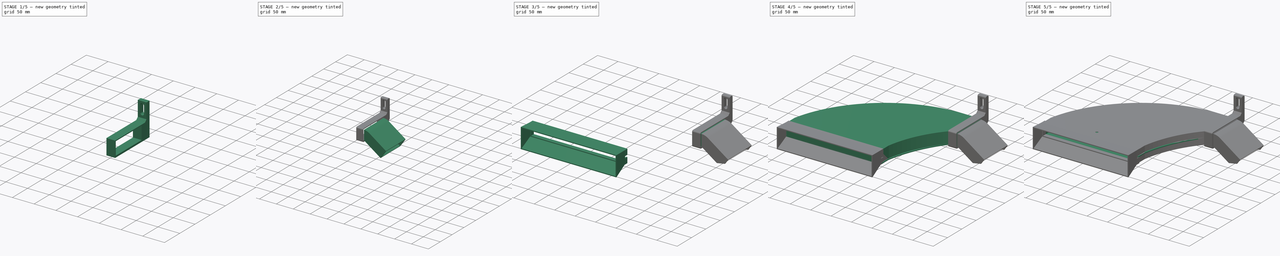
[diagram: build sequence overview — one tinted view per stage of 5, left to right]
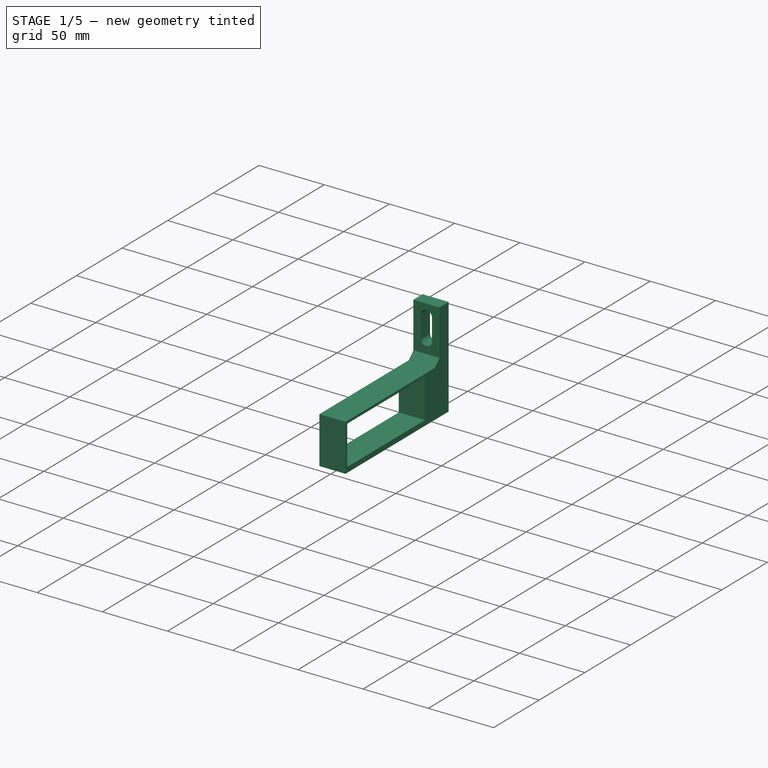
[diagram: stage 1 of 5 — iso view after this stage's code; geometry added in this stage tinted green]
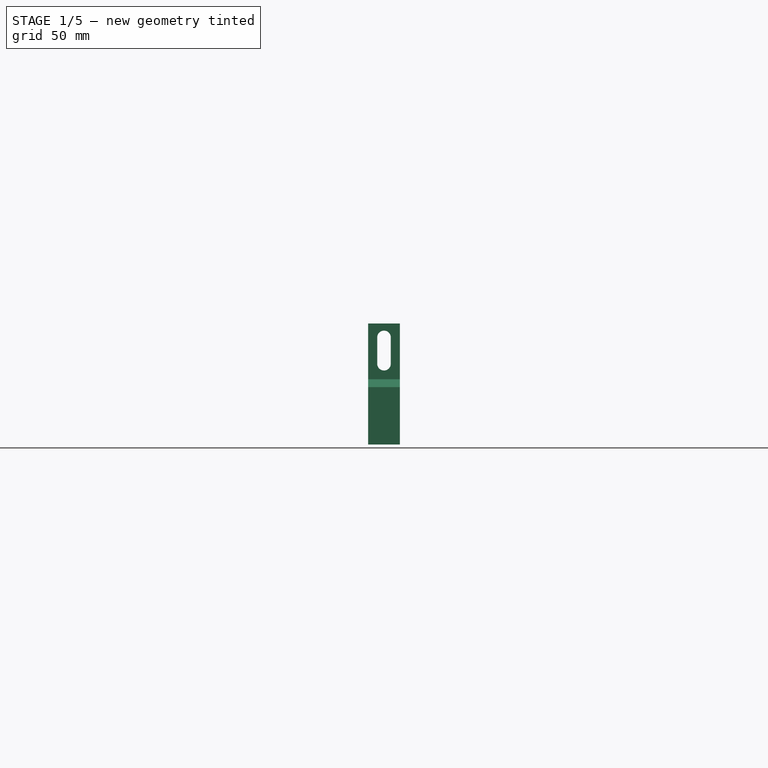
[diagram: stage 1 of 5 — front view after this stage's code; geometry added in this stage tinted green]
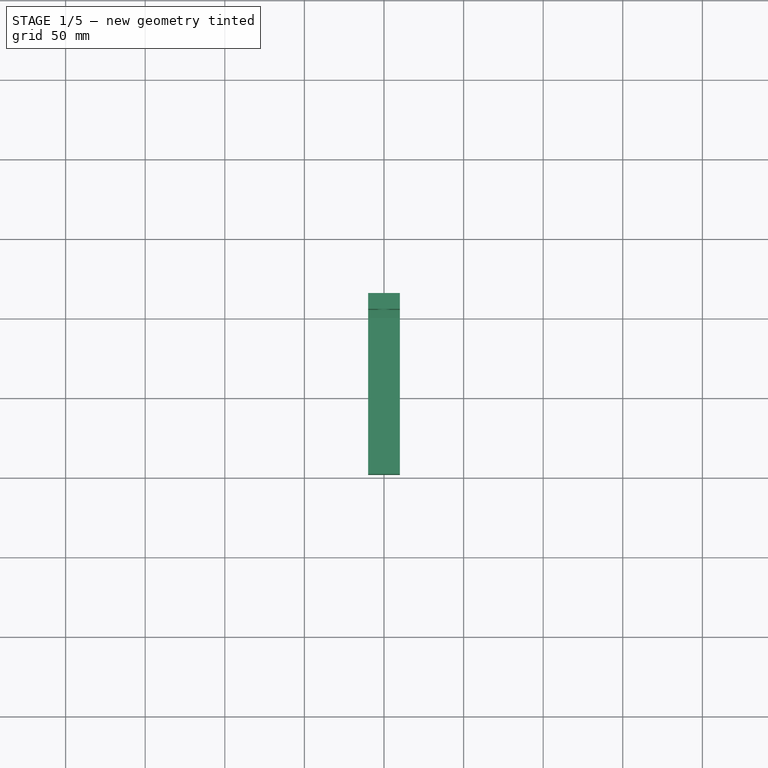
[diagram: stage 1 of 5 — top view after this stage's code; geometry added in this stage tinted green]
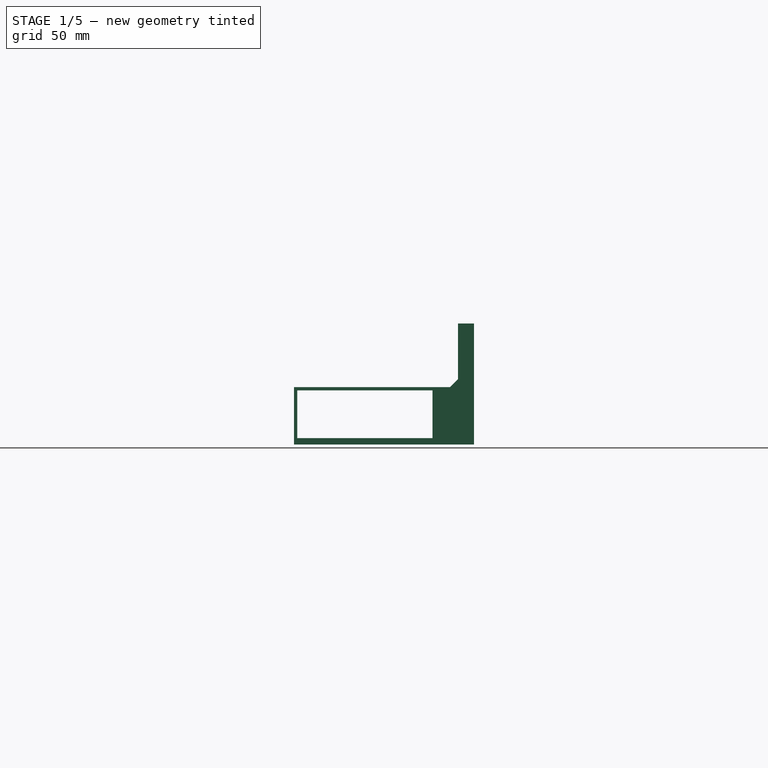
[diagram: stage 1 of 5 — right view after this stage's code; geometry added in this stage tinted green]
FCSTD DOCUMENT  (FreeCAD 1.0R38641 +468 (Git))
Label: GrYarisRearDiffDuctThinMainBody
License: All rights reserved
LicenseURL: https://en.wikipedia.org/wiki/All_rights_reserved
objects: Sketcher::SketchObject×19, PartDesign::Pad×9, PartDesign::Body×6, PartDesign::Pocket×6, PartDesign::Chamfer×2, PartDesign::Hole×1, Part::MultiFuse×1, Part::Cut×1, PartDesign::AdditiveLoft×1, PartDesign::Revolution×1, PartDesign::Fillet×1
note: 109 computed .brp shape members not serialized (recipe doc carries the construction recipe); baked Part::Feature solids carry a one-line shape summary decoded from their .brp

FEATURE [Sketcher::SketchObject] Sketch011
  ArcFitTolerance = 1e-06
  AttachmentOffset = pos=(290,0,-240) rot=(0,0,1;0rad)
  AttachmentSupport = -> [XZ_Plane004]
  FullyConstrained = true
  MakeInternals = false
  MapMode = 5
  Placement = pos=(290,240,-5.33e-14) rot=(1,0,0;1.5708rad)
  sketch-geometry (4):
    g0: LineSegment StartX=0 StartY=-3 StartZ=0 EndX=20 EndY=-3 EndZ=0
    g1: LineSegment StartX=20 StartY=-3 StartZ=0 EndX=20 EndY=33 EndZ=0
    g2: LineSegment StartX=20 StartY=33 StartZ=0 EndX=0 EndY=33 EndZ=0
    g3: LineSegment StartX=0 StartY=33 StartZ=0 EndX=0 EndY=-3 EndZ=0
  constraints (12):
    c: Coincident(g0,g1)
    c: Coincident(g1,g2)
    c: Coincident(g2,g3)
    c: Coincident(g3,g0)
    c: Horizontal(g0)
    c: Horizontal(g2)
    c: Vertical(g1)
    c: Vertical(g3)
    c: Distance(g1,g3) = 20
    c: Distance(g0,g2) = 36
    c: PointOnObject(g0,g-2)
    c: DistanceY(g0,g-1) = 3
FEATURE [PartDesign::Pad] Pad004  label="BaseSpacerPlate"
  Direction = (0,-1,2e-16)
  Length = 25
  Length2 = 10
  Placement = pos=(0,0,0) rot=(1,0,0;1.5708rad)
  Profile = -> Sketch011
  ReferenceAxis = -> Sketch011 [N_Axis]
  Refine = true
  Reversed = true
  Suppressed = false
  Type = 0
FEATURE [Sketcher::SketchObject] Sketch015  label="VerticalBase"
  ArcFitTolerance = 1e-06
  FullyConstrained = true
  MakeInternals = false
  MapMode = 5
  Placement = pos=(0,2.1e-14,33) rot=(0,0,1;3.14159rad)
  sketch-geometry (4):
    g0: LineSegment StartX=-310 StartY=-265 StartZ=0 EndX=-290 EndY=-265 EndZ=0
    g1: LineSegment StartX=-290 StartY=-265 StartZ=0 EndX=-290 EndY=-255 EndZ=0
    g2: LineSegment StartX=-290 StartY=-255 StartZ=0 EndX=-310 EndY=-255 EndZ=0
    g3: LineSegment StartX=-310 StartY=-255 StartZ=0 EndX=-310 EndY=-265 EndZ=0
  constraints (11):
    c: Coincident(g0,g1)
    c: Coincident(g1,g2)
    c: Coincident(g2,g3)
    c: Coincident(g3,g0)
    c: Horizontal(g0)
    c: Horizontal(g2)
    c: Vertical(g1)
    c: Vertical(g3)
    c: Coincident(g0,g-4)
    c: PointOnObject(g1,g-5)
    c: Distance(g1,g1) = 10
FEATURE [PartDesign::Pad] Pad008  label="VerticalBasePad"
  BaseFeature = -> Pad004
  Direction = (0,0,1)
  Length = 40
  Length2 = 10
  Placement = pos=(0,0,0) rot=(1,0,0;1.5708rad)
  Profile = -> Sketch015
  ReferenceAxis = -> Sketch015 [N_Axis]
  Refine = true
  Suppressed = false
  Type = 0
FEATURE [Sketcher::SketchObject] Sketch016  label="MountingHoleSketch001"
  ArcFitTolerance = 1e-06
  AttachmentSupport = -> [Pad008]
  ExternalGeometry = -> [Pad008]
  FullyConstrained = false
  MakeInternals = false
  MapMode = 5
  Placement = pos=(0,255,0) rot=(1,0,0;1.5708rad)
  sketch-geometry (11):
    g0: LineSegment StartX=299.942 StartY=43.5 StartZ=0 EndX=300.058 EndY=43.5 EndZ=0
    g1: LineSegment StartX=304.25 StartY=47.6919 StartZ=0 EndX=304.25 EndY=64.3081 EndZ=0
    g2: LineSegment StartX=300.058 StartY=68.5 StartZ=0 EndX=299.942 EndY=68.5 EndZ=0
    g3: LineSegment StartX=295.75 StartY=64.3081 StartZ=0 EndX=295.75 EndY=47.6919 EndZ=0
    g4: ArcOfCircle CenterX=299.942 CenterY=47.6919 CenterZ=0 NormalX=0 NormalY=0 NormalZ=1 AngleXU=0 Radius=4.19193 StartAngle=3.14159 EndAngle=4.71239
    g5: ArcOfCircle CenterX=300.058 CenterY=47.6919 CenterZ=0 NormalX=0 NormalY=0 NormalZ=1 AngleXU=0 Radius=4.19193 StartAngle=4.71239 EndAngle=6.28319
    g6: ArcOfCircle CenterX=300.058 CenterY=64.3081 CenterZ=0 NormalX=0 NormalY=0 NormalZ=1 AngleXU=0 Radius=4.19193 StartAngle=-4.441e-13 EndAngle=1.5708
    g7: ArcOfCircle CenterX=299.942 CenterY=64.3081 CenterZ=0 NormalX=0 NormalY=0 NormalZ=1 AngleXU=0 Radius=4.19193 StartAngle=1.5708 EndAngle=3.14159
    g8: GeomPoint [constr] X=304.25 Y=68.5 Z=0
    g9: GeomPoint [constr] X=300 Y=56 Z=0
    g10: GeomPoint [constr] X=300 Y=73 Z=0
  constraints (23):
    c: Tangent(g0,g4) = -1.5708
    c: Tangent(g0,g5) = -1.5708
    c: Tangent(g1,g5) = -1.5708
    c: Tangent(g1,g6) = -1.5708
    c: Tangent(g2,g6) = -1.5708
    c: Tangent(g2,g7) = -1.5708
    c: Tangent(g3,g7) = -1.5708
    c: Tangent(g3,g4) = -1.5708
    c: Horizontal(g0)
    c: Horizontal(g2)
    c: Vertical(g1)
    c: Vertical(g3)
    c: Equal(g4,g5)
    c: Equal(g5,g6)
    c: Equal(g6,g7)
    c: Symmetric(g2,g0,g9)
    c: PointOnObject(g8,g1)
    c: PointOnObject(g8,g2)
    c: Distance(g1,g3) = 8.5
    c: Distance(g0,g2) = 25
    c: Symmetric(g-4,g-4,g10)
    c: Vertical(g10,g9)
    c: DistanceY(g9,g-5) = 17
FEATURE [PartDesign::Pocket] Pocket004  label="MountingHolePocket"
  BaseFeature = -> Pad008
  Direction = (0,1,-2e-16)
  Length = 5
  Length2 = 5
  Placement = pos=(0,0,0) rot=(1,0,0;1.5708rad)
  Profile = -> Sketch016
  ReferenceAxis = -> Sketch016 [N_Axis]
  Refine = true
  Suppressed = false
  Type = 1
FEATURE [PartDesign::Body] Body005  label="Outlet"
  AllowCompound = false
  Group = -> [Sketch019,Revolution,Sketch020,Pad010,Sketch021,Pocket006,Sketch022,Pad011]
  Origin = -> Origin005
  Placement = pos=(0,395,30) rot=(1,0,0;3.14159rad)
  Tip = -> Pad011
FEATURE [Sketcher::SketchObject] Sketch023  label="WrapAroundMainBodySketch"
  ArcFitTolerance = 1e-06
  AttachmentSupport = -> [Pocket004]
  ExternalGeometry = -> [Pocket004]
  FullyConstrained = false
  MakeInternals = false
  MapMode = 5
  Placement = pos=(310,-1.755e-13,-2.143e-13) rot=(0.707107,0,0.707107;3.14159rad)
  sketch-geometry (9):
    g0: LineSegment StartX=-3 StartY=-240 StartZ=0 EndX=33 EndY=-240 EndZ=0
    g1: LineSegment StartX=33 StartY=-240 StartZ=0 EndX=33 EndY=-152 EndZ=0
    g2: LineSegment StartX=33 StartY=-152 StartZ=0 EndX=-3 EndY=-152 EndZ=0
    g3: LineSegment StartX=-3 StartY=-152 StartZ=0 EndX=-3 EndY=-240 EndZ=0
    g4: GeomPoint [constr] X=0 Y=-247.433 Z=0
    g5: LineSegment StartX=1 StartY=-239 StartZ=0 EndX=31 EndY=-239 EndZ=0
    g6: LineSegment StartX=31 StartY=-239 StartZ=0 EndX=31 EndY=-154 EndZ=0
    g7: LineSegment StartX=31 StartY=-154 StartZ=0 EndX=1 EndY=-154 EndZ=0
    g8: LineSegment StartX=1 StartY=-154 StartZ=0 EndX=1 EndY=-239 EndZ=0
  constraints (24):
    c: Coincident(g0,g1)
    c: Coincident(g1,g2)
    c: Coincident(g2,g3)
    c: Coincident(g3,g0)
    c: Horizontal(g0)
    c: Horizontal(g2)
    c: Vertical(g1)
    c: Vertical(g3)
    c: Coincident(g0,g-5)
    c: Vertical(g0,g-5)
    c: DistanceY(g3,g3) = 88
    c: PointOnObject(g4,g-2)
    c: Coincident(g5,g6)
    c: Coincident(g6,g7)
    c: Coincident(g7,g8)
    c: Coincident(g8,g5)
    c: Horizontal(g5)
    c: Horizontal(g7)
    c: Vertical(g6)
    c: Vertical(g8)
    c: DistanceX(g0,g5) = 4
    c: DistanceY(g0,g5) = 1
    c: Distance(g5,g5) = 30
    c: DistanceY(g6,g6) = 85
FEATURE [PartDesign::Pad] Pad012  label="WrapAroundMainBodyPad"
  BaseFeature = -> Pocket004
  Direction = (1,0,-2e-16)
  Length = 20
  Length2 = 10
  Placement = pos=(0,0,0) rot=(1,0,0;1.5708rad)
  Profile = -> Sketch023
  ReferenceAxis = -> Sketch023 [N_Axis]
  Refine = true
  Reversed = true
  Suppressed = false
  Type = 0
FEATURE [PartDesign::Chamfer] Chamfer  label="StrenghteningChamferInsideEdge"
  Angle = 45
  Base = -> Pad012 [Edge17]
  BaseFeature = -> Pad012
  ChamferType = 0
  FlipDirection = false
  Placement = pos=(0,0,0) rot=(1,0,0;1.5708rad)
  Refine = true
  Size = 5
  Size2 = 1
  SupportTransform = false
  Suppressed = false
  UseAllEdges = false
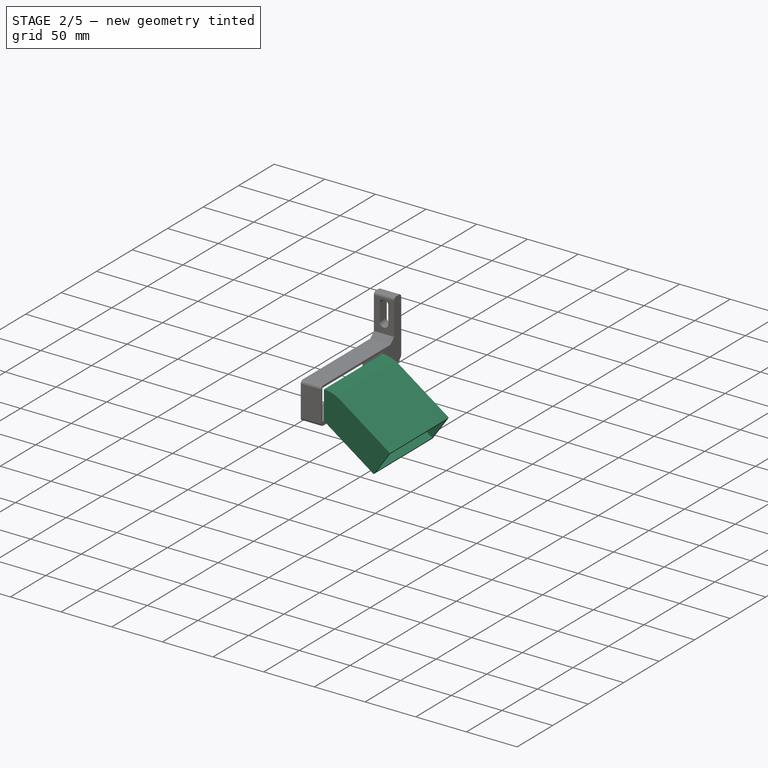
[diagram: stage 2 of 5 — iso view after this stage's code; geometry added in this stage tinted green]
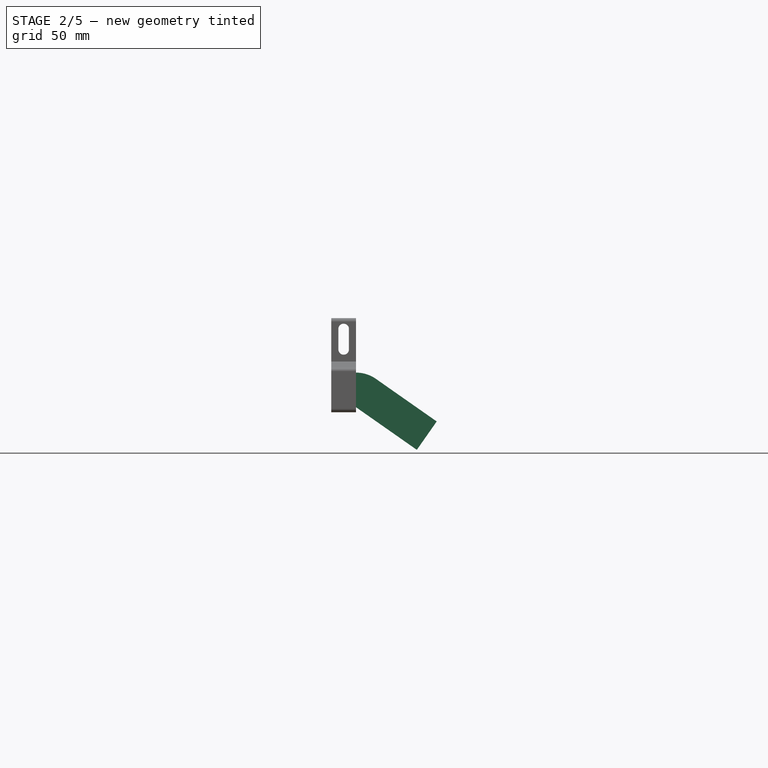
[diagram: stage 2 of 5 — front view after this stage's code; geometry added in this stage tinted green]
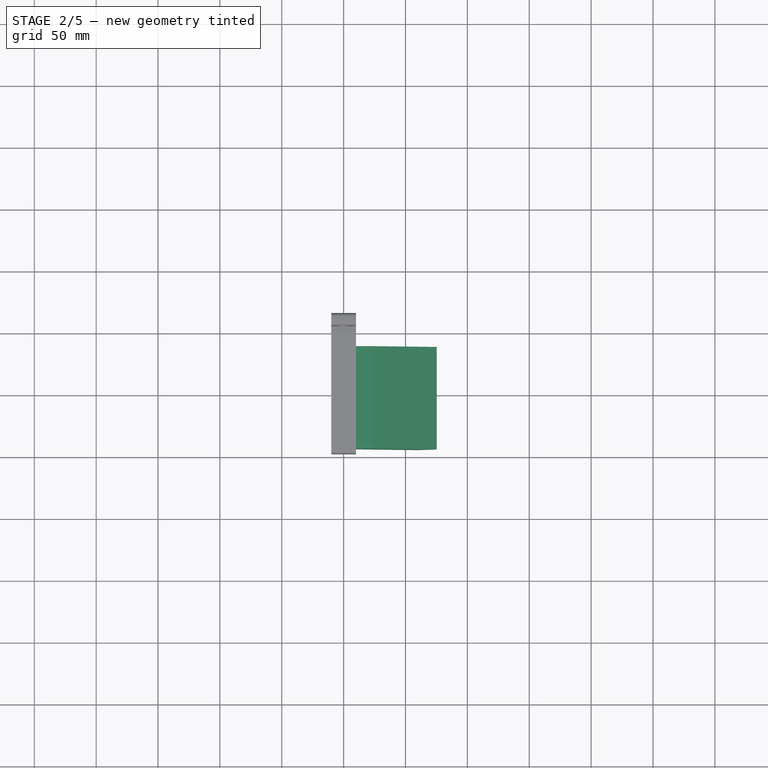
[diagram: stage 2 of 5 — top view after this stage's code; geometry added in this stage tinted green]
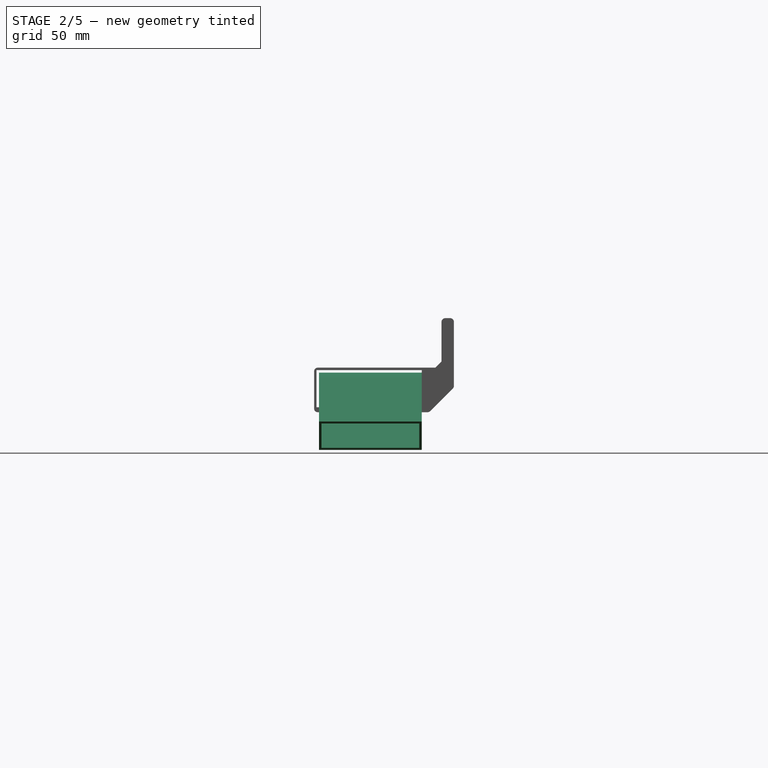
[diagram: stage 2 of 5 — right view after this stage's code; geometry added in this stage tinted green]
FEATURE [PartDesign::Body] Body003  label="Inlet"
  AllowCompound = false
  Group = -> [Sketch007,Pad003,Sketch008,Pocket003,Sketch009,Sketch010,AdditiveLoft,Sketch018,Pocket005]
  Origin = -> Origin003
  Tip = -> Pocket005
FEATURE [Sketcher::SketchObject] Sketch019  label="MainBodyMatchingSketch001"
  ArcFitTolerance = 1e-06
  AttachmentOffset = pos=(156,1,310) rot=(0,0,1;0rad)
  AttachmentSupport = -> [YZ_Plane005]
  FullyConstrained = true
  MakeInternals = false
  MapMode = 5
  Placement = pos=(310,156,1) rot=(0.57735,0.57735,0.57735;2.0944rad)
  sketch-geometry (8):
    g0: LineSegment StartX=0 StartY=0 StartZ=0 EndX=83 EndY=0 EndZ=0
    g1: LineSegment StartX=83 StartY=0 StartZ=0 EndX=83 EndY=28 EndZ=0
    g2: LineSegment StartX=83 StartY=28 StartZ=0 EndX=0 EndY=28 EndZ=0
    g3: LineSegment StartX=0 StartY=28 StartZ=0 EndX=0 EndY=0 EndZ=0
    g4: LineSegment StartX=2 StartY=26 StartZ=0 EndX=2 EndY=2 EndZ=0
    g5: LineSegment StartX=2 StartY=2 StartZ=0 EndX=81 EndY=2 EndZ=0
    g6: LineSegment StartX=81 StartY=2 StartZ=0 EndX=81 EndY=26 EndZ=0
    g7: LineSegment StartX=81 StartY=26 StartZ=0 EndX=2 EndY=26 EndZ=0
  constraints (23):
    c: Coincident(g0,g1)
    c: Coincident(g1,g2)
    c: Coincident(g2,g3)
    c: Coincident(g3,g0)
    c: Horizontal(g0)
    c: Horizontal(g2)
    c: Vertical(g1)
    c: Vertical(g3)
    c: Distance(g1,g3) = 83
    c: Distance(g0,g2) = 28
    c: Coincident(g0,g-1)
    c: Coincident(g4,g5)
    c: Coincident(g5,g6)
    c: Coincident(g6,g7)
    c: Coincident(g7,g4)
    c: Vertical(g4)
    c: Vertical(g6)
    c: Horizontal(g5)
    c: Horizontal(g7)
    c: DistanceX(g2,g4) = 2
    c: DistanceX(g6,g1) = 2
    c: DistanceY(g4,g2) = 2
    c: DistanceY(g0,g4) = 2
FEATURE [PartDesign::Revolution] Revolution  label="FirstBendUpwards"
  Angle = 35
  Angle2 = 60
  Axis = (0,1,0)
  Base = (310,156,1)
  Placement = pos=(0,0,0) rot=(1,1,1;2.0944rad)
  Profile = -> Sketch019
  ReferenceAxis = -> Sketch019 [H_Axis]
  Refine = true
  Suppressed = false
  Type = 0
FEATURE [Sketcher::SketchObject] Sketch020  label="Extension"
  ArcFitTolerance = 1e-06
  AttachmentSupport = -> [Revolution]
  ExternalGeometry = -> [Revolution]
  FullyConstrained = true
  MakeInternals = false
  MapMode = 5
  Placement = pos=(207.543,-8.87e-14,-145.323) rot=(0.663579,0.663579,0.345437;2.47638rad)
  sketch-geometry (8):
    g0: LineSegment StartX=156 StartY=206.628 StartZ=0 EndX=156 EndY=178.628 EndZ=0
    g1: LineSegment StartX=156 StartY=178.628 StartZ=0 EndX=239 EndY=178.628 EndZ=0
    g2: LineSegment StartX=239 StartY=178.628 StartZ=0 EndX=239 EndY=206.628 EndZ=0
    g3: LineSegment StartX=239 StartY=206.628 StartZ=0 EndX=156 EndY=206.628 EndZ=0
    g4: LineSegment StartX=237 StartY=204.628 StartZ=0 EndX=158 EndY=204.628 EndZ=0
    g5: LineSegment StartX=158 StartY=204.628 StartZ=0 EndX=158 EndY=180.628 EndZ=0
    g6: LineSegment StartX=158 StartY=180.628 StartZ=0 EndX=237 EndY=180.628 EndZ=0
    g7: LineSegment StartX=237 StartY=180.628 StartZ=0 EndX=237 EndY=204.628 EndZ=0
  constraints (20):
    c: Coincident(g0,g1)
    c: Coincident(g1,g2)
    c: Coincident(g2,g3)
    c: Coincident(g3,g0)
    c: Vertical(g0)
    c: Vertical(g2)
    c: Horizontal(g1)
    c: Horizontal(g3)
    c: Coincident(g0,g-4)
    c: Coincident(g1,g-5)
    c: Coincident(g4,g5)
    c: Coincident(g5,g6)
    c: Coincident(g6,g7)
    c: Coincident(g7,g4)
    c: Horizontal(g4)
    c: Horizontal(g6)
    c: Vertical(g5)
    c: Vertical(g7)
    c: Coincident(g4,g-7)
    c: Coincident(g5,g-6)
FEATURE [PartDesign::Pad] Pad010  label="MainOutletPipePad"
  BaseFeature = -> Revolution
  Direction = (0.819152,-1e-16,-0.573576)
  Length = 60
  Length2 = 10
  Placement = pos=(0,0,0) rot=(1,1,1;2.0944rad)
  Profile = -> Sketch020
  ReferenceAxis = -> Sketch020 [N_Axis]
  Refine = true
  Suppressed = false
  Type = 0
FEATURE [PartDesign::Chamfer] Chamfer001  label="CutoutOutisdeChamfer"
  Angle = 45
  Base = -> Chamfer [Edge52]
  BaseFeature = -> Chamfer
  ChamferType = 0
  FlipDirection = false
  Placement = pos=(0,0,0) rot=(1,0,0;1.5708rad)
  Refine = true
  Size = 20
  Size2 = 1
  SupportTransform = false
  Suppressed = false
  UseAllEdges = false
FEATURE [PartDesign::Fillet] Fillet  label="ExternalEdgesFillet"
  Base = -> Chamfer001 [Edge14,Edge26,Edge40,Edge29,Edge13,Edge24]
  BaseFeature = -> Chamfer001
  Placement = pos=(0,0,0) rot=(1,0,0;1.5708rad)
  Radius = 3
  Refine = true
  SupportTransform = false
  Suppressed = false
  UseAllEdges = false
FEATURE [PartDesign::Body] Body004  label="RearHanger"
  AllowCompound = false
  Group = -> [Sketch011,Pad004,Sketch015,Pad008,Sketch016,Pocket004,Sketch023,Pad012,Chamfer,Chamfer001,Fillet]
  Origin = -> Origin004
  Placement = pos=(0,1,-1) rot=(0,0,1;0rad)
  Tip = -> Fillet
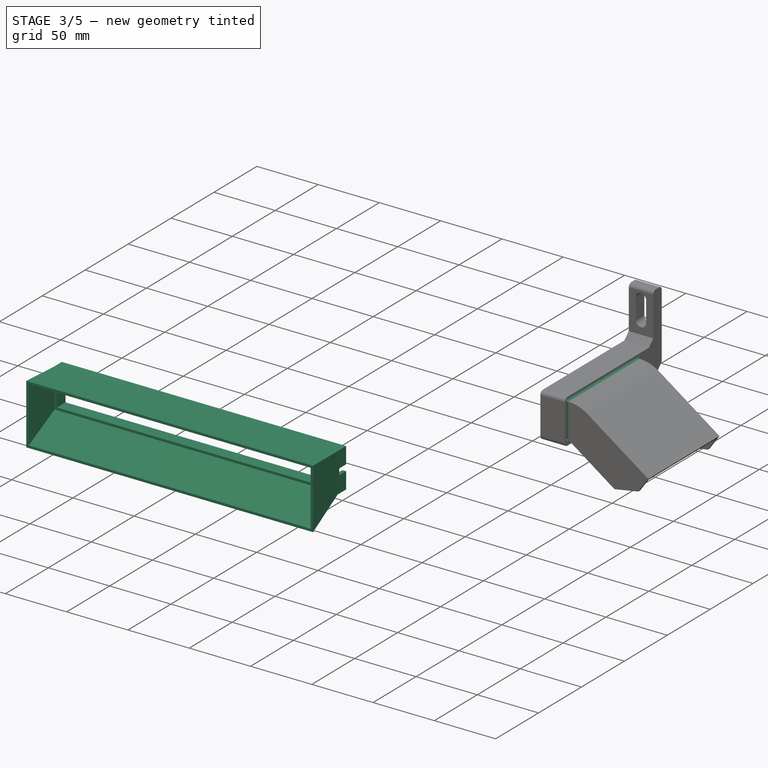
[diagram: stage 3 of 5 — iso view after this stage's code; geometry added in this stage tinted green]
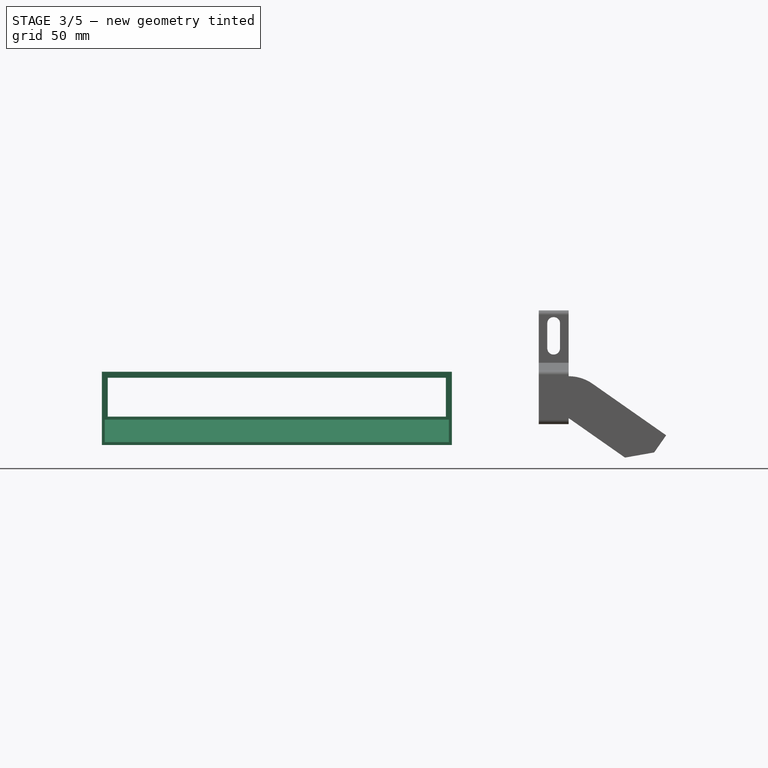
[diagram: stage 3 of 5 — front view after this stage's code; geometry added in this stage tinted green]
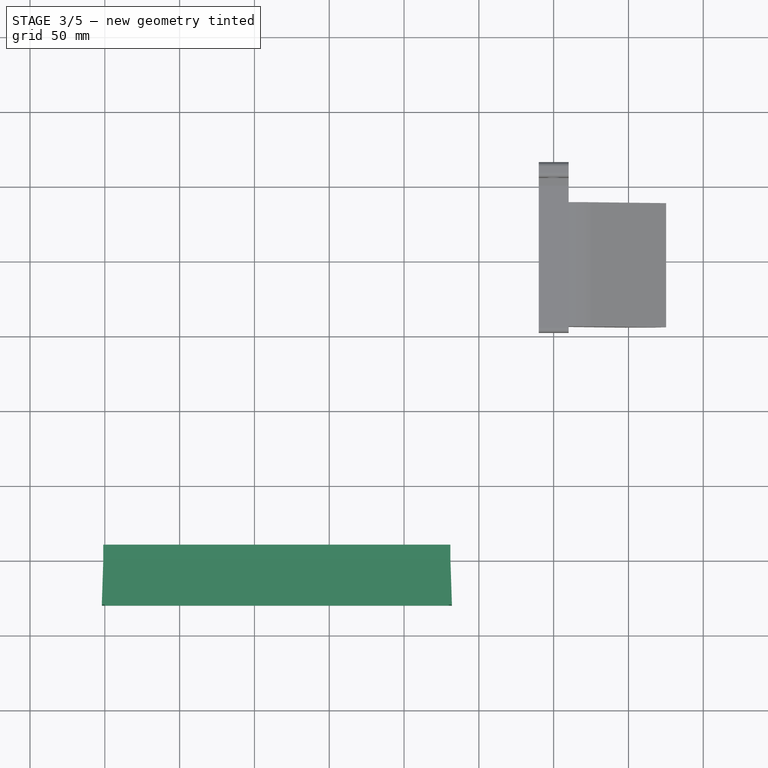
[diagram: stage 3 of 5 — top view after this stage's code; geometry added in this stage tinted green]
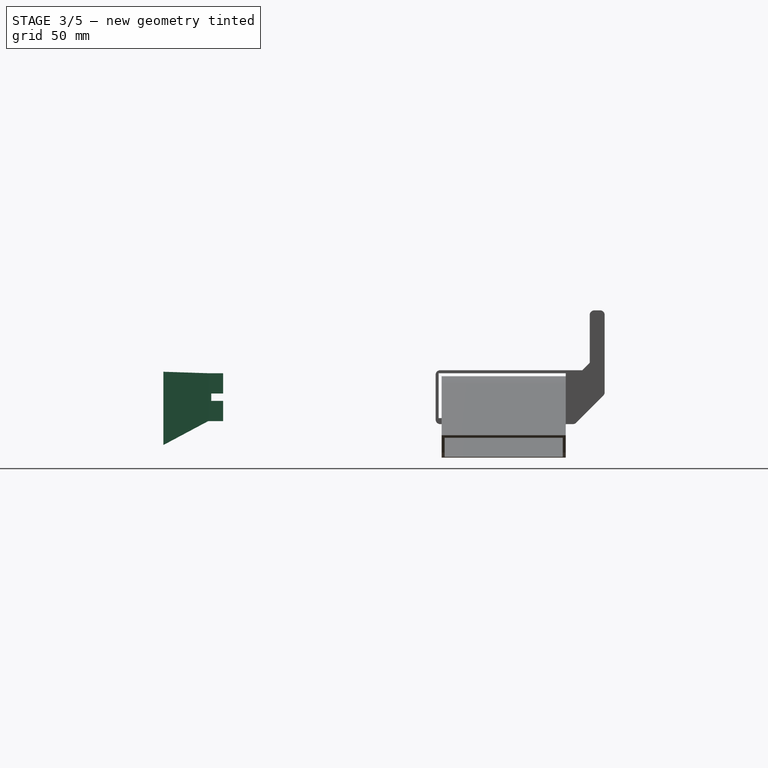
[diagram: stage 3 of 5 — right view after this stage's code; geometry added in this stage tinted green]
FEATURE [Sketcher::SketchObject] Sketch007  label="MainBodyMatchingSketch"
  ArcFitTolerance = 1e-06
  AttachmentSupport = -> [XZ_Plane003]
  FullyConstrained = true
  MakeInternals = false
  MapMode = 5
  Placement = pos=(0,0,0) rot=(1,0,0;1.5708rad)
  sketch-geometry (8):
    g0: LineSegment StartX=-1 StartY=31 StartZ=0 EndX=-1 EndY=-1 EndZ=0
    g1: LineSegment StartX=-1 StartY=-1 StartZ=0 EndX=231 EndY=-1 EndZ=0
    g2: LineSegment StartX=231 StartY=-1 StartZ=0 EndX=231 EndY=31 EndZ=0
    g3: LineSegment StartX=231 StartY=31 StartZ=0 EndX=-1 EndY=31 EndZ=0
    g4: LineSegment StartX=2 StartY=28 StartZ=0 EndX=2 EndY=2 EndZ=0
    g5: LineSegment StartX=2 StartY=2 StartZ=0 EndX=228 EndY=2 EndZ=0
    g6: LineSegment StartX=228 StartY=2 StartZ=0 EndX=228 EndY=28 EndZ=0
    g7: LineSegment StartX=228 StartY=28 StartZ=0 EndX=2 EndY=28 EndZ=0
  constraints (24):
    c: Coincident(g0,g1)
    c: Coincident(g1,g2)
    c: Coincident(g2,g3)
    c: Coincident(g3,g0)
    c: Vertical(g0)
    c: Vertical(g2)
    c: Horizontal(g1)
    c: Horizontal(g3)
    c: Coincident(g4,g5)
    c: Coincident(g5,g6)
    c: Coincident(g6,g7)
    c: Coincident(g7,g4)
    c: Vertical(g4)
    c: Vertical(g6)
    c: Horizontal(g5)
    c: Horizontal(g7)
    c: DistanceY(g0,g-1) = 1
    c: DistanceY(g0,g0) = 32
    c: DistanceX(g1,g1) = 232
    c: DistanceX(g0,g-1) = 1
    c: DistanceX(g0,g4) = 3
    c: DistanceX(g6,g2) = 3
    c: DistanceY(g0,g4) = 3
    c: DistanceY(g4,g0) = 3
FEATURE [PartDesign::Pad] Pad003  label="MainBodyMatchingPad"
  Direction = (0,-1,2e-16)
  Length = 10
  Length2 = 10
  Placement = pos=(0,0,0) rot=(1,0,0;1.5708rad)
  Profile = -> Sketch007
  ReferenceAxis = -> Sketch007 [N_Axis]
  Refine = true
  Reversed = true
  Suppressed = false
  Type = 0
FEATURE [Sketcher::SketchObject] Sketch008  label="CutoutForFlangeSketch"
  ArcFitTolerance = 1e-06
  AttachmentSupport = -> [Pad003]
  ExternalGeometry = -> [Pad003]
  FullyConstrained = true
  MakeInternals = false
  MapMode = 5
  Placement = pos=(-1,0,0) rot=(0.707107,0,-0.707107;3.14159rad)
  sketch-geometry (4):
    g0: LineSegment StartX=-17.5 StartY=-10 StartZ=0 EndX=-12.5 EndY=-10 EndZ=0
    g1: LineSegment StartX=-12.5 StartY=-10 StartZ=0 EndX=-12.5 EndY=-2 EndZ=0
    g2: LineSegment StartX=-12.5 StartY=-2 StartZ=0 EndX=-17.5 EndY=-2 EndZ=0
    g3: LineSegment StartX=-17.5 StartY=-2 StartZ=0 EndX=-17.5 EndY=-10 EndZ=0
  constraints (12):
    c: Coincident(g0,g1)
    c: Coincident(g1,g2)
    c: Coincident(g2,g3)
    c: Coincident(g3,g0)
    c: Horizontal(g0)
    c: Horizontal(g2)
    c: Vertical(g1)
    c: Vertical(g3)
    c: PointOnObject(g0,g-3)
    c: DistanceX(g-5,g2) = 13.5
    c: DistanceX(g1,g-4) = 13.5
    c: DistanceY(g0,g1) = 8
FEATURE [PartDesign::Pocket] Pocket003  label="CutoutForFlangePocket"
  BaseFeature = -> Pad003
  Direction = (1,0,2e-16)
  Length = 5
  Length2 = 5
  Placement = pos=(0,0,0) rot=(1,0,0;1.5708rad)
  Profile = -> Sketch008
  ReferenceAxis = -> Sketch008 [N_Axis]
  Refine = true
  Suppressed = false
  Type = 1
FEATURE [Sketcher::SketchObject] Sketch009  label="InletLargeHoleSketch"
  ArcFitTolerance = 1e-06
  AttachmentOffset = pos=(0,0,30) rot=(0,0,1;0rad)
  AttachmentSupport = -> [XZ_Plane003]
  FullyConstrained = true
  MakeInternals = false
  MapMode = 5
  Placement = pos=(0,-30,6.7e-15) rot=(1,0,0;1.5708rad)
  sketch-geometry (8):
    g0: LineSegment StartX=0 StartY=30 StartZ=0 EndX=0 EndY=-15 EndZ=0
    g1: LineSegment StartX=0 StartY=-15 StartZ=0 EndX=230 EndY=-15 EndZ=0
    g2: LineSegment StartX=230 StartY=-15 StartZ=0 EndX=230 EndY=30 EndZ=0
    g3: LineSegment StartX=230 StartY=30 StartZ=0 EndX=0 EndY=30 EndZ=0
    g4: LineSegment StartX=-2 StartY=32 StartZ=0 EndX=-2 EndY=-17 EndZ=0
    g5: LineSegment StartX=-2 StartY=-17 StartZ=0 EndX=232 EndY=-17 EndZ=0
    g6: LineSegment StartX=232 StartY=-17 StartZ=0 EndX=232 EndY=32 EndZ=0
    g7: LineSegment StartX=232 StartY=32 StartZ=0 EndX=-2 EndY=32 EndZ=0
  constraints (24):
    c: Coincident(g0,g1)
    c: Coincident(g1,g2)
    c: Coincident(g2,g3)
    c: Coincident(g3,g0)
    c: Vertical(g0)
    c: Vertical(g2)
    c: Horizontal(g1)
    c: Horizontal(g3)
    c: Distance(g0,g2) = 230
    c: Distance(g1,g3) = 45
    c: PointOnObject(g0,g-2)
    c: DistanceY(g-1,g0) = 30
    c: Coincident(g4,g5)
    c: Coincident(g5,g6)
    c: Coincident(g6,g7)
    c: Coincident(g7,g4)
    c: Vertical(g4)
    c: Vertical(g6)
    c: Horizontal(g5)
    c: Horizontal(g7)
    c: DistanceX(g2,g6) = 2
    c: DistanceX(g4,g0) = 2
    c: DistanceY(g4,g0) = 2
    c: DistanceY(g0,g4) = 2
FEATURE [Sketcher::SketchObject] Sketch010  label="InletFaceSketch"
  ArcFitTolerance = 1e-06
  AttachmentSupport = -> [Pocket003]
  ExternalGeometry = -> [Pocket003]
  FullyConstrained = true
  MakeInternals = false
  MapMode = 5
  Placement = pos=(0,3.3e-15,0) rot=(1,0,0;1.5708rad)
  sketch-geometry (8):
    g0: LineSegment StartX=0 StartY=30 StartZ=0 EndX=0 EndY=0 EndZ=0
    g1: LineSegment StartX=0 StartY=0 StartZ=0 EndX=230 EndY=0 EndZ=0
    g2: LineSegment StartX=230 StartY=0 StartZ=0 EndX=230 EndY=30 EndZ=0
    g3: LineSegment StartX=230 StartY=30 StartZ=0 EndX=0 EndY=30 EndZ=0
    g4: LineSegment StartX=-1 StartY=31 StartZ=0 EndX=-1 EndY=-1 EndZ=0
    g5: LineSegment StartX=-1 StartY=-1 StartZ=0 EndX=231 EndY=-1 EndZ=0
    g6: LineSegment StartX=231 StartY=-1 StartZ=0 EndX=231 EndY=31 EndZ=0
    g7: LineSegment StartX=231 StartY=31 StartZ=0 EndX=-1 EndY=31 EndZ=0
  constraints (20):
    c: Coincident(g0,g1)
    c: Coincident(g1,g2)
    c: Coincident(g2,g3)
    c: Coincident(g3,g0)
    c: Vertical(g0)
    c: Vertical(g2)
    c: Horizontal(g1)
    c: Horizontal(g3)
    c: Coincident(g0,g-4)
    c: Coincident(g1,g-7)
    c: Coincident(g4,g5)
    c: Coincident(g5,g6)
    c: Coincident(g6,g7)
    c: Coincident(g7,g4)
    c: Vertical(g4)
    c: Vertical(g6)
    c: Horizontal(g5)
    c: Horizontal(g7)
    c: Coincident(g4,g-5)
    c: Coincident(g5,g-8)
FEATURE [PartDesign::AdditiveLoft] AdditiveLoft
  BaseFeature = -> Pocket003
  Closed = false
  Placement = pos=(0,0,0) rot=(1,0,0;1.5708rad)
  Profile = -> Sketch009
  Refine = true
  Ruled = false
  Sections = -> [Sketch010]
  Suppressed = false
FEATURE [Sketcher::SketchObject] Sketch021  label="TipCutoutSketch"
  ArcFitTolerance = 1e-06
  AttachmentSupport = -> [Pad010]
  ExternalGeometry = -> [Pad010]
  FullyConstrained = true
  MakeInternals = false
  MapMode = 5
  Placement = pos=(1.747e-13,156,0) rot=(0.57735,0.57735,-0.57735;2.0944rad)
  sketch-geometry (3):
    g0: LineSegment StartX=21.9465 StartY=367.179 StartZ=0 EndX=33.4146 EndY=359.149 EndZ=0
    g1: LineSegment StartX=33.4146 StartY=359.149 StartZ=0 EndX=25.3845 EndY=347.681 EndZ=0
    g2: LineSegment StartX=21.9465 StartY=367.179 StartZ=0 EndX=25.3845 EndY=347.681 EndZ=0
  constraints (7):
    c: Symmetric(g-3,g-3,g0)
    c: Coincident(g0,g-4)
    c: Coincident(g1,g0)
    c: PointOnObject(g1,g-4)
    c: Equal(g1,g0)
    c: Coincident(g2,g0)
    c: Coincident(g2,g1)
FEATURE [PartDesign::Pocket] Pocket006  label="TipCutoutPocket"
  BaseFeature = -> Pad010
  Direction = (1e-15,1,-1e-16)
  Length = 5
  Length2 = 5
  Placement = pos=(0,0,0) rot=(1,1,1;2.0944rad)
  Profile = -> Sketch021
  ReferenceAxis = -> Sketch021 [N_Axis]
  Refine = true
  Suppressed = false
  Type = 1
FEATURE [Sketcher::SketchObject] Sketch022  label="InsertIntoMainBodySketch"
  ArcFitTolerance = 1e-06
  AttachmentSupport = -> [Pocket006]
  ExternalGeometry = -> [Pocket006]
  FullyConstrained = true
  MakeInternals = false
  MapMode = 5
  Placement = pos=(310,0,0) rot=(0.57735,0.57735,-0.57735;4.18879rad)
  sketch-geometry (8):
    g0: LineSegment StartX=158 StartY=-3 StartZ=0 EndX=158 EndY=-27 EndZ=0
    g1: LineSegment StartX=158 StartY=-27 StartZ=0 EndX=237 EndY=-27 EndZ=0
    g2: LineSegment StartX=237 StartY=-27 StartZ=0 EndX=237 EndY=-3 EndZ=0
    g3: LineSegment StartX=237 StartY=-3 StartZ=0 EndX=158 EndY=-3 EndZ=0
    g4: LineSegment StartX=156 StartY=-1 StartZ=0 EndX=156 EndY=-29 EndZ=0
    g5: LineSegment StartX=156 StartY=-29 StartZ=0 EndX=239 EndY=-29 EndZ=0
    g6: LineSegment StartX=239 StartY=-29 StartZ=0 EndX=239 EndY=-1 EndZ=0
    g7: LineSegment StartX=239 StartY=-1 StartZ=0 EndX=156 EndY=-1 EndZ=0
  constraints (20):
    c: Coincident(g0,g1)
    c: Coincident(g1,g2)
    c: Coincident(g2,g3)
    c: Coincident(g3,g0)
    c: Vertical(g0)
    c: Vertical(g2)
    c: Horizontal(g1)
    c: Horizontal(g3)
    c: Coincident(g0,g-7)
    c: Coincident(g1,g-10)
    c: Coincident(g4,g5)
    c: Coincident(g5,g6)
    c: Coincident(g6,g7)
    c: Coincident(g7,g4)
    c: Vertical(g4)
    c: Vertical(g6)
    c: Horizontal(g5)
    c: Horizontal(g7)
    c: Coincident(g4,g-8)
    c: Coincident(g5,g-9)
FEATURE [PartDesign::Pad] Pad011  label="InsertIntoMainBodyPad"
  BaseFeature = -> Pocket006
  Direction = (-1,0,0)
  Length = 15
  Length2 = 10
  Placement = pos=(0,0,0) rot=(1,1,1;2.0944rad)
  Profile = -> Sketch022
  ReferenceAxis = -> Sketch022 [N_Axis]
  Refine = true
  Suppressed = false
  Type = 0
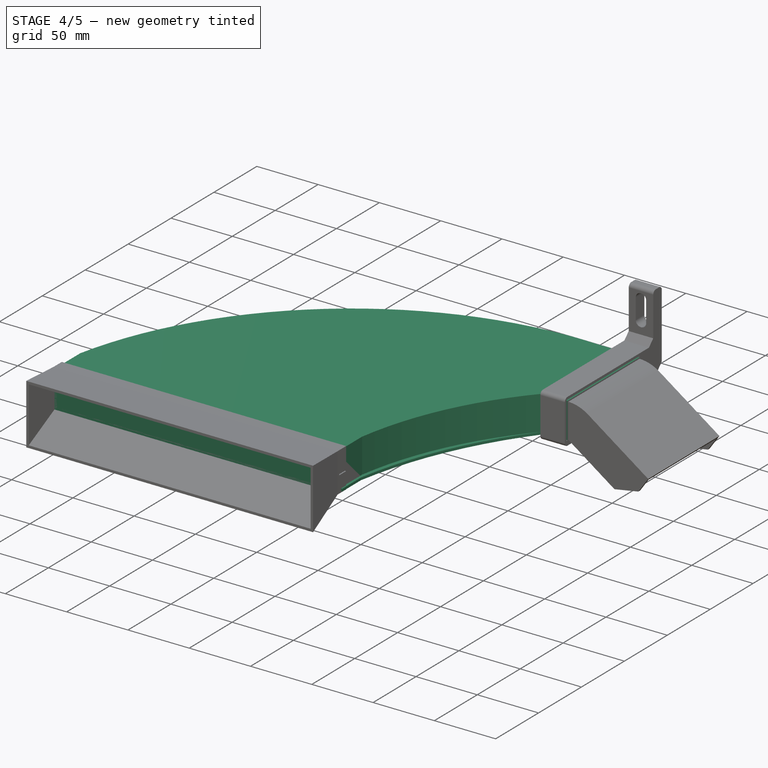
[diagram: stage 4 of 5 — iso view after this stage's code; geometry added in this stage tinted green]
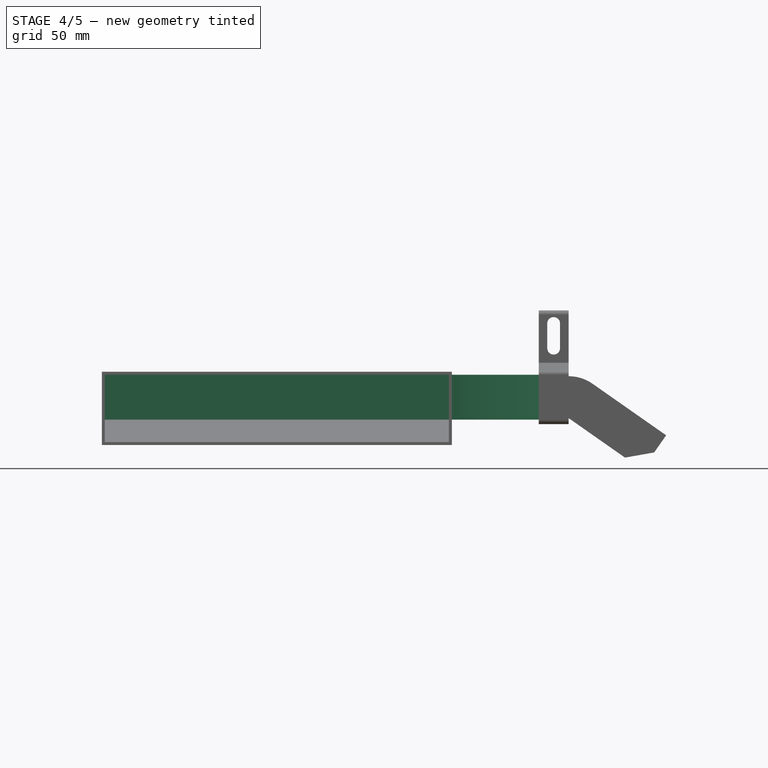
[diagram: stage 4 of 5 — front view after this stage's code; geometry added in this stage tinted green]
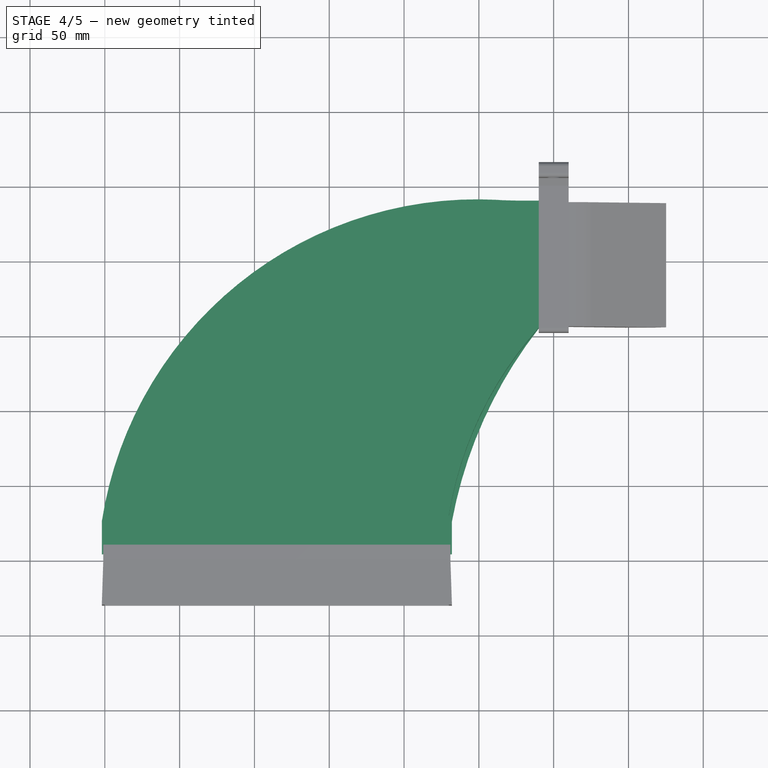
[diagram: stage 4 of 5 — top view after this stage's code; geometry added in this stage tinted green]
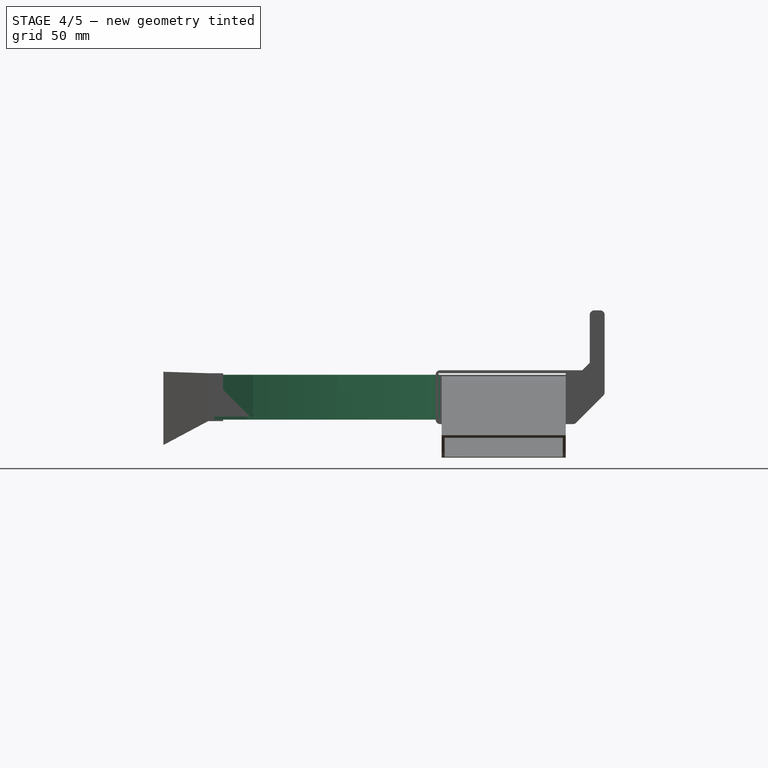
[diagram: stage 4 of 5 — right view after this stage's code; geometry added in this stage tinted green]
FEATURE [Sketcher::SketchObject] Sketch
  ArcFitTolerance = 1e-06
  AttachmentSupport = -> [XY_Plane]
  FullyConstrained = false
  MakeInternals = false
  MapMode = 5
  sketch-geometry (8):
    g0: LineSegment StartX=0 StartY=0 StartZ=0 EndX=230 EndY=0 EndZ=0
    g1: LineSegment StartX=0 StartY=0 StartZ=0 EndX=0 EndY=30 EndZ=0
    g2: LineSegment StartX=230 StartY=0 StartZ=0 EndX=230 EndY=30 EndZ=0
    g3: ArcOfCircle CenterX=261.423 CenterY=-27.2805 CenterZ=0 NormalX=0 NormalY=0 NormalZ=1 AngleXU=0 Radius=267.625 StartAngle=1.52004 EndAngle=2.92589
    g4: LineSegment StartX=275 StartY=240 StartZ=0 EndX=310 EndY=240 EndZ=0
    g5: LineSegment StartX=310 StartY=240 StartZ=0 EndX=310 EndY=155 EndZ=0
    g6: LineSegment StartX=310 StartY=155 StartZ=0 EndX=290 EndY=155 EndZ=0
    g7: ArcOfCircle CenterX=473.553 CenterY=-10.0052 CenterZ=0 NormalX=0 NormalY=0 NormalZ=1 AngleXU=0 Radius=246.816 StartAngle=2.40936 EndAngle=2.97879
  constraints (23):
    c: Distance(g0) = 230  'BottomEdgeWidth'
    c: Coincident(g0,g-1)  'BottomEdgeStart'
    c: Horizontal(g0)  'BottomEdgeHorizontal'
    c: DistanceY(g0,g3) = 240
    c: Distance(g1) = 30
    c: Coincident(g1,g0)
    c: PointOnObject(g1,g-2)
    c: Distance(g2) = 30
    c: Coincident(g2,g0)
    c: Vertical(g2)
    c: Coincident(g3,g1)
    c: Distance(g4) = 35
    c: Horizontal(g4)
    c: Coincident(g5,g4)
    c: Distance(g6) = 20
    c: Horizontal(g6)
    c: Coincident(g6,g5)
    c: Coincident(g7,g6)
    c: DistanceY(g5,g5) = 85
    c: Vertical(g5)
    c: DistanceX(g0,g4) = 275
    c: Coincident(g3,g4)
    c: Coincident(g7,g2)
FEATURE [PartDesign::Pad] Pad  label="MainShapePad"
  Direction = (0,0,1)
  Length = 30
  Length2 = 10
  Profile = -> Sketch
  ReferenceAxis = -> Sketch [N_Axis]
  Refine = true
  Suppressed = false
  Type = 0
FEATURE [PartDesign::Body] Body001  label="BodyToHollowOutMainCurvedBody"
  AllowCompound = false
  Group = -> [Sketch001,Pad001]
  Origin = -> Origin001
  Placement = pos=(1,1,1) rot=(0,0,1;0rad)
  Tip = -> Pad001
FEATURE [Sketcher::SketchObject] Sketch002  label="OutletVentSketch"
  ArcFitTolerance = 1e-06
  AttachmentSupport = -> [Pad]
  ExternalGeometry = -> [Pad]
  FullyConstrained = true
  MakeInternals = false
  MapMode = 5
  Placement = pos=(310,0,0) rot=(0.57735,0.57735,0.57735;2.0944rad)
  sketch-geometry (4):
    g0: LineSegment StartX=156 StartY=29 StartZ=0 EndX=156 EndY=1 EndZ=0
    g1: LineSegment StartX=156 StartY=1 StartZ=0 EndX=239 EndY=1 EndZ=0
    g2: LineSegment StartX=239 StartY=1 StartZ=0 EndX=239 EndY=29 EndZ=0
    g3: LineSegment StartX=239 StartY=29 StartZ=0 EndX=156 EndY=29 EndZ=0
  constraints (12):
    c: Coincident(g0,g1)
    c: Coincident(g1,g2)
    c: Coincident(g2,g3)
    c: Coincident(g3,g0)
    c: Vertical(g0)
    c: Vertical(g2)
    c: Horizontal(g1)
    c: Horizontal(g3)
    c: DistanceX(g2,g-4) = 1
    c: DistanceX(g-5,g0) = 1
    c: DistanceY(g-5,g0) = 1
    c: DistanceY(g2,g-4) = 1
FEATURE [PartDesign::Pocket] Pocket  label="OutletVentPocket"
  BaseFeature = -> Pad
  Direction = (-1,0,0)
  Length = 30
  Length2 = 5
  Profile = -> Sketch002
  ReferenceAxis = -> Sketch002 [N_Axis]
  Refine = true
  Suppressed = false
  Type = 0
FEATURE [PartDesign::Body] Body  label="MainCurvedBody"
  AllowCompound = false
  Group = -> [Sketch,Pad,Sketch002,Pocket,Sketch003,Pocket001,Sketch004,Hole]
  Origin = -> Origin
  Tip = -> Hole
FEATURE [Sketcher::SketchObject] Sketch006  label="FlangeSketch"
  ArcFitTolerance = 1e-06
  AttachmentSupport = -> [XY_Plane002]
  FullyConstrained = false
  MakeInternals = false
  MapMode = 5
  sketch-geometry (16):
    g0: LineSegment [constr] StartX=0 StartY=0 StartZ=0 EndX=230 EndY=0 EndZ=0
    g1: LineSegment [constr] StartX=0 StartY=0 StartZ=0 EndX=4.6043e-12 EndY=26 EndZ=0
    g2: LineSegment [constr] StartX=230 StartY=0 StartZ=0 EndX=230 EndY=26 EndZ=0
    g3: ArcOfCircle [constr] CenterX=262.227 CenterY=-27.2805 CenterZ=0 NormalX=0 NormalY=0 NormalZ=1 AngleXU=0 Radius=267.586 StartAngle=1.52305 EndAngle=2.94114
    g4: LineSegment [constr] StartX=275 StartY=240 StartZ=0 EndX=305 EndY=240 EndZ=0
    g5: LineSegment [constr] StartX=305 StartY=240 StartZ=0 EndX=305 EndY=155 EndZ=0
    g6: LineSegment [constr] StartX=305 StartY=155 StartZ=0 EndX=290 EndY=155 EndZ=0
    g7: ArcOfCircle [constr] CenterX=473.553 CenterY=-8.82678 CenterZ=0 NormalX=0 NormalY=0 NormalZ=1 AngleXU=0 Radius=246.03 StartAngle=2.41292 EndAngle=2.99956
    g8: LineSegment StartX=232 StartY=4 StartZ=0 EndX=232 EndY=26 EndZ=0
    g9: LineSegment StartX=-2 StartY=4 StartZ=0 EndX=-2 EndY=26 EndZ=0
    g10: LineSegment StartX=-2 StartY=4 StartZ=0 EndX=232 EndY=4 EndZ=0
    g11: LineSegment StartX=290 StartY=155 StartZ=0 EndX=292.538 EndY=155 EndZ=0
    g12: LineSegment StartX=275 StartY=240 StartZ=0 EndX=292.538 EndY=240 EndZ=0
    g13: LineSegment StartX=292.538 StartY=240 StartZ=0 EndX=292.538 EndY=155 EndZ=0
    g14: ArcOfCircle CenterX=524.962 CenterY=-28.1806 CenterZ=0 NormalX=0 NormalY=0 NormalZ=1 AngleXU=0 Radius=297.93 StartAngle=2.4794 EndAngle=2.95872
    g15: ArcOfCircle CenterX=248.964 CenterY=-12.5732 CenterZ=0 NormalX=0 NormalY=0 NormalZ=1 AngleXU=0 Radius=253.912 StartAngle=1.46808 EndAngle=2.98909
  constraints (44):
    c: Distance(g0) = 230  'BottomEdgeWidth'
    c: Coincident(g0,g-1)  'BottomEdgeStart'
    c: Horizontal(g0)  'BottomEdgeHorizontal'
    c: DistanceY(g0,g3) = 240
    c: Distance(g1) = 26
    c: Coincident(g1,g0)
    c: PointOnObject(g1,g-2)
    c: Distance(g2) = 26
    c: Coincident(g2,g0)
    c: Vertical(g2)
    c: Coincident(g3,g1)
    c: Distance(g4) = 30
    c: Horizontal(g4)
    c: Coincident(g5,g4)
    c: Distance(g6) = 15
    c: Horizontal(g6)
    c: Coincident(g6,g5)
    c: Coincident(g7,g6)
    c: DistanceY(g5,g5) = 85
    c: Vertical(g5)
    c: DistanceX(g0,g4) = 275
    c: Coincident(g3,g4)
    c: Coincident(g7,g2)
    c: Vertical(g8)
    c: Horizontal(g8,g2)
    c: DistanceX(g2,g8) = 2
    c: Vertical(g9)
    c: Horizontal(g1,g9)
    c: DistanceX(g9,g1) = 2
    c: Coincident(g10,g9)
    c: Coincident(g10,g8)
    c: Coincident(g11,g6)
    c: PointOnObject(g11,g6)
    c: Coincident(g12,g3)
    c: PointOnObject(g12,g4)
    c: Vertical(g12,g11)
    c: Coincident(g13,g12)
    c: Coincident(g13,g11)
    c: Coincident(g14,g8)
    c: Coincident(g14,g6)
    c: Coincident(g15,g9)
    c: Coincident(g15,g3)
    c: DistanceY(g9,g0) = -4
    c: DistanceY(g8,g0) = -4
FEATURE [PartDesign::Pad] Pad002  label="FlangePad"
  Direction = (0,0,1)
  Length = 2
  Length2 = 10
  Profile = -> Sketch006
  ReferenceAxis = -> Sketch006 [N_Axis]
  Refine = true
  Suppressed = false
  Type = 0
FEATURE [Sketcher::SketchObject] Sketch018  label="CutoutForMainBody"
  ArcFitTolerance = 1e-06
  AttachmentSupport = -> [Pocket003]
  ExternalGeometry = -> [Pocket003]
  FullyConstrained = true
  MakeInternals = false
  MapMode = 5
  Placement = pos=(0,10,0) rot=(-1,0,0;1.5708rad)
  sketch-geometry (8):
    g0: LineSegment StartX=0 StartY=0 StartZ=0 EndX=0 EndY=-30 EndZ=0
    g1: LineSegment StartX=0 StartY=-30 StartZ=0 EndX=230 EndY=-30 EndZ=0
    g2: LineSegment StartX=230 StartY=-30 StartZ=0 EndX=230 EndY=0 EndZ=0
    g3: LineSegment StartX=230 StartY=0 StartZ=0 EndX=0 EndY=0 EndZ=0
    g4: LineSegment StartX=1.1 StartY=-1.1 StartZ=0 EndX=1.1 EndY=-28.9 EndZ=0
    g5: LineSegment StartX=1.1 StartY=-28.9 StartZ=0 EndX=228.9 EndY=-28.9 EndZ=0
    g6: LineSegment StartX=228.9 StartY=-28.9 StartZ=0 EndX=228.9 EndY=-1.1 EndZ=0
    g7: LineSegment StartX=228.9 StartY=-1.1 StartZ=0 EndX=1.1 EndY=-1.1 EndZ=0
  constraints (23):
    c: Coincident(g0,g1)
    c: Coincident(g1,g2)
    c: Coincident(g2,g3)
    c: Coincident(g3,g0)
    c: Vertical(g0)
    c: Vertical(g2)
    c: Horizontal(g1)
    c: Horizontal(g3)
    c: Coincident(g0,g-1)
    c: DistanceX(g2,g-3) = 1
    c: DistanceY(g-10,g1) = 1
    c: Coincident(g4,g5)
    c: Coincident(g5,g6)
    c: Coincident(g6,g7)
    c: Coincident(g7,g4)
    c: Vertical(g4)
    c: Vertical(g6)
    c: Horizontal(g5)
    c: Horizontal(g7)
    c: DistanceX(g0,g4) = 1.1
    c: DistanceX(g6,g2) = 1.1
    c: DistanceY(g4,g0) = 1.1
    c: DistanceY(g0,g4) = 1.1
FEATURE [PartDesign::Pocket] Pocket005  label="CoutoutForMainBodyPocket"
  BaseFeature = -> AdditiveLoft
  Direction = (0,-1,-2e-16)
  Length = 6
  Length2 = 5
  Placement = pos=(0,0,0) rot=(1,0,0;1.5708rad)
  Profile = -> Sketch018
  ReferenceAxis = -> Sketch018 [N_Axis]
  Refine = true
  Suppressed = false
  Type = 0
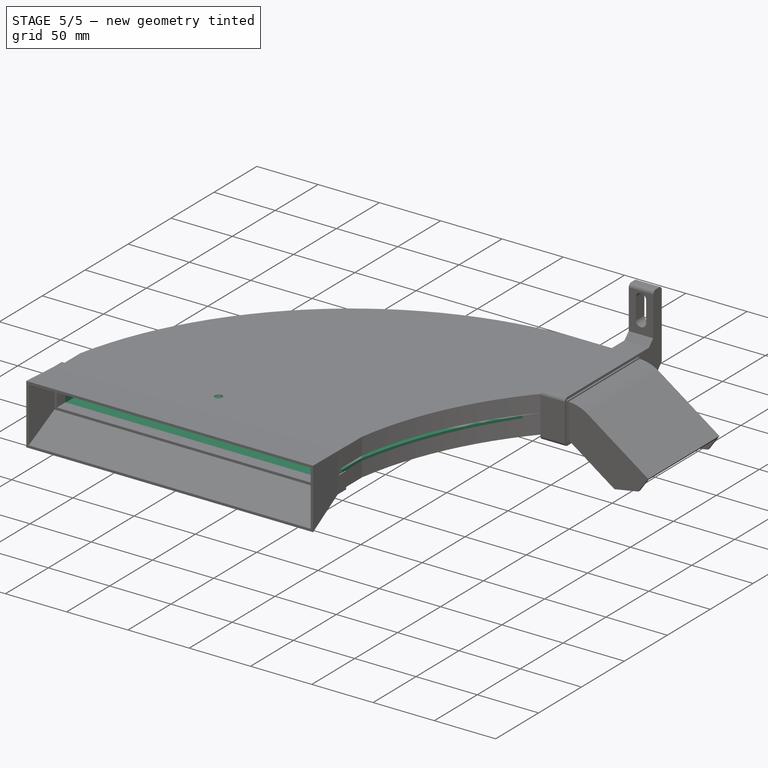
[diagram: stage 5 of 5 — iso view after this stage's code; geometry added in this stage tinted green]
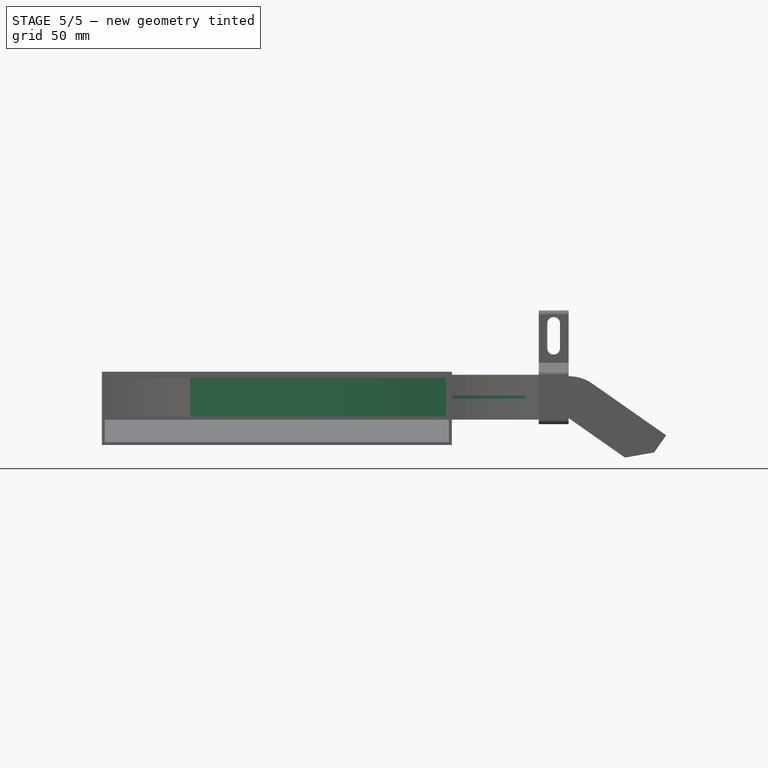
[diagram: stage 5 of 5 — front view after this stage's code; geometry added in this stage tinted green]
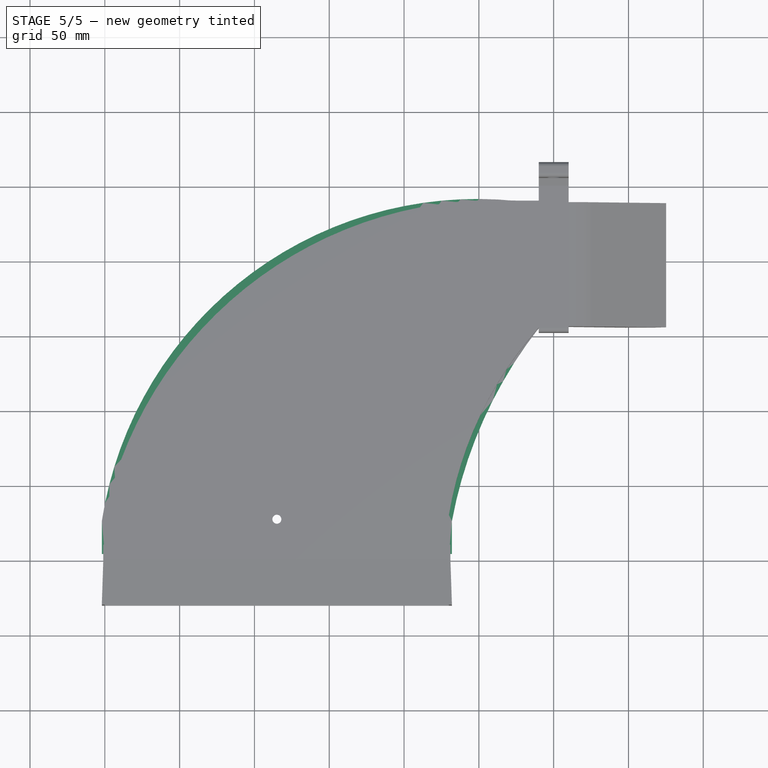
[diagram: stage 5 of 5 — top view after this stage's code; geometry added in this stage tinted green]
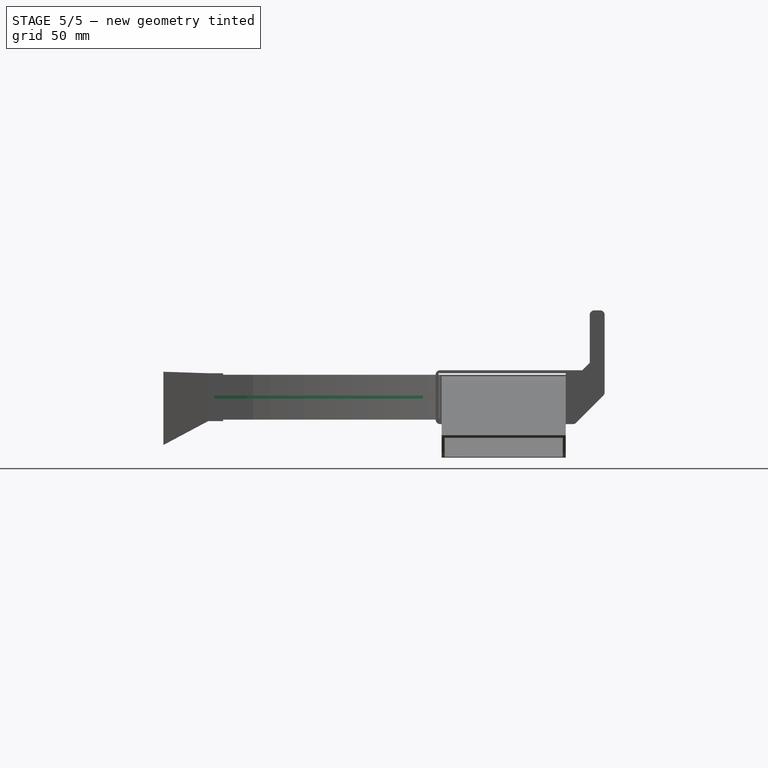
[diagram: stage 5 of 5 — right view after this stage's code; geometry added in this stage tinted green]
FEATURE [Sketcher::SketchObject] Sketch001
  ArcFitTolerance = 1e-06
  AttachmentSupport = -> [XY_Plane001]
  FullyConstrained = false
  MakeInternals = false
  MapMode = 5
  sketch-geometry (8):
    g0: LineSegment StartX=0 StartY=0 StartZ=0 EndX=228 EndY=0 EndZ=0
    g1: LineSegment StartX=0 StartY=0 StartZ=0 EndX=0 EndY=30 EndZ=0
    g2: LineSegment StartX=228 StartY=0 StartZ=0 EndX=228 EndY=30 EndZ=0
    g3: ArcOfCircle CenterX=257.337 CenterY=-27.2806 CenterZ=0 NormalX=0 NormalY=0 NormalZ=1 AngleXU=0 Radius=263.635 StartAngle=1.51895 EndAngle=2.92257
    g4: LineSegment StartX=271 StartY=236 StartZ=0 EndX=301 EndY=236 EndZ=0
    g5: LineSegment StartX=301 StartY=236 StartZ=0 EndX=301 EndY=155 EndZ=0
    g6: LineSegment StartX=301 StartY=155 StartZ=0 EndX=286 EndY=155 EndZ=0
    g7: ArcOfCircle CenterX=473.553 CenterY=-7.98038 CenterZ=0 NormalX=0 NormalY=0 NormalZ=1 AngleXU=0 Radius=248.472 StartAngle=2.42618 EndAngle=2.98814
  constraints (23):
    c: Distance(g0) = 228  'BottomEdgeWidth'
    c: Coincident(g0,g-1)  'BottomEdgeStart'
    c: Horizontal(g0)  'BottomEdgeHorizontal'
    c: DistanceY(g0,g3) = 236
    c: Distance(g1) = 30
    c: Coincident(g1,g0)
    c: PointOnObject(g1,g-2)
    c: Distance(g2) = 30
    c: Coincident(g2,g0)
    c: Vertical(g2)
    c: Coincident(g3,g1)
    c: Distance(g4) = 30
    c: Horizontal(g4)
    c: Coincident(g5,g4)
    c: Distance(g6) = 15
    c: Horizontal(g6)
    c: Coincident(g6,g5)
    c: Coincident(g7,g6)
    c: DistanceY(g5,g5) = 81
    c: Vertical(g5)
    c: DistanceX(g0,g4) = 271
    c: Coincident(g3,g4)
    c: Coincident(g7,g2)
FEATURE [PartDesign::Pad] Pad001
  Direction = (0,0,1)
  Length = 28
  Length2 = 10
  Profile = -> Sketch001
  ReferenceAxis = -> Sketch001 [N_Axis]
  Refine = true
  Suppressed = false
  Type = 0
FEATURE [Sketcher::SketchObject] Sketch003  label="InletSketch"
  ArcFitTolerance = 1e-06
  AttachmentSupport = -> [Pocket]
  ExternalGeometry = -> [Pocket]
  FullyConstrained = true
  MakeInternals = false
  MapMode = 5
  Placement = pos=(0,0,0) rot=(1,0,0;1.5708rad)
  sketch-geometry (4):
    g0: LineSegment StartX=1 StartY=29 StartZ=0 EndX=1 EndY=1 EndZ=0
    g1: LineSegment StartX=1 StartY=1 StartZ=0 EndX=229 EndY=1 EndZ=0
    g2: LineSegment StartX=229 StartY=1 StartZ=0 EndX=229 EndY=29 EndZ=0
    g3: LineSegment StartX=229 StartY=29 StartZ=0 EndX=1 EndY=29 EndZ=0
  constraints (12):
    c: Coincident(g0,g1)
    c: Coincident(g1,g2)
    c: Coincident(g2,g3)
    c: Coincident(g3,g0)
    c: Vertical(g0)
    c: Vertical(g2)
    c: Horizontal(g1)
    c: Horizontal(g3)
    c: DistanceX(g2,g-4) = 1
    c: DistanceX(g-1,g0) = 1
    c: DistanceY(g-1,g0) = 1
    c: DistanceY(g2,g-4) = 1
FEATURE [PartDesign::Pocket] Pocket001  label="InletPocket"
  BaseFeature = -> Pocket
  Direction = (0,1,-2e-16)
  Length = 10
  Length2 = 5
  Profile = -> Sketch003
  ReferenceAxis = -> Sketch003 [N_Axis]
  Refine = true
  Suppressed = false
  Type = 0
FEATURE [Sketcher::SketchObject] Sketch004  label="MountingHoleSketch"
  ArcFitTolerance = 1e-06
  AttachmentSupport = -> [Pocket001]
  ExternalGeometry = -> [Pocket001]
  FullyConstrained = true
  MakeInternals = false
  MapMode = 5
  Placement = pos=(0,0,0) rot=(1,0,0;3.14159rad)
  sketch-geometry (1):
    g0: Circle CenterX=115 CenterY=-27 CenterZ=0 NormalX=0 NormalY=0 NormalZ=1 AngleXU=0 Radius=5.5
  constraints (3):
    c: Diameter(g0) = 11
    c: DistanceY(g0) = -27
    c: DistanceX(g0,g-3) = 115
FEATURE [PartDesign::Hole] Hole  label="MountingScrewHole"
  BaseFeature = -> Pocket001
  CustomThreadClearance = 0
  Depth = 786.649
  DepthType = 1
  Diameter = 6
  DrillForDepth = false
  DrillPoint = 1
  DrillPointAngle = 118
  HoleCutCountersinkAngle = 90
  HoleCutCustomValues = false
  HoleCutDepth = 5
  HoleCutDiameter = 12
  HoleCutType = 3
  ModelThread = false
  Profile = -> Sketch004
  Refine = true
  Suppressed = false
  Tapered = false
  TaperedAngle = 90
  ThreadClass = 0
  ThreadDepth = 786.649
  ThreadDepthType = 0
  ThreadDirection = 0
  ThreadFit = 0
  ThreadSize = 0
  ThreadType = 0
  Threaded = false
  UseCustomThreadClearance = false
FEATURE [PartDesign::Body] Body002  label="FlangeBody"
  AllowCompound = false
  Group = -> [Sketch006,Pad002]
  Origin = -> Origin002
  Placement = pos=(0,0,14) rot=(0,0,1;0rad)
  Tip = -> Pad002
FEATURE [Part::MultiFuse] Fusion  label="MainCurvedBodyWithFlange"
  Shapes = -> [Body002,Body]
FEATURE [Part::Cut] Cut  label="MainCuvedBodyHollowedOut"
  Base = -> Fusion
  Tool = -> Body001
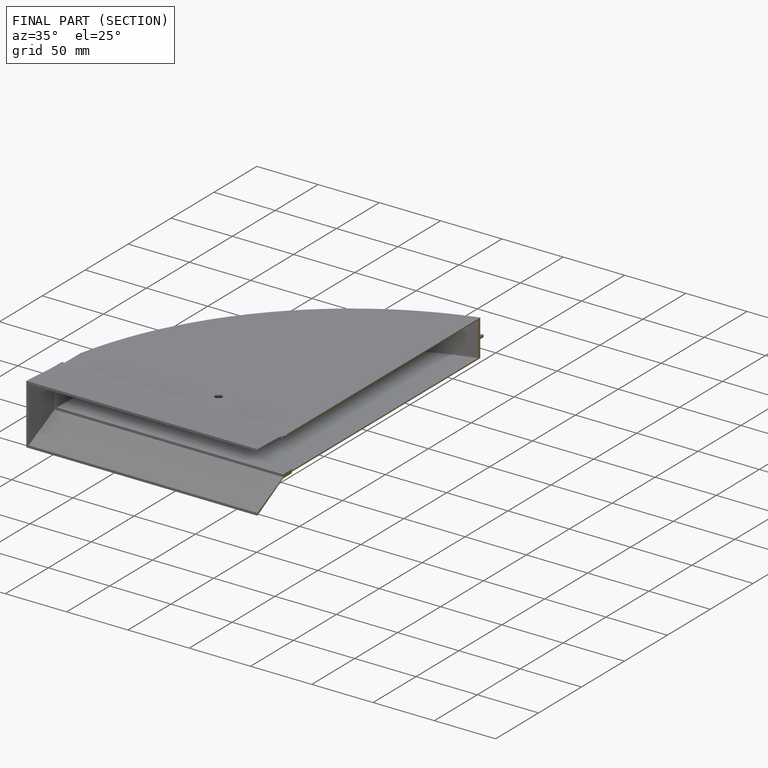
[diagram: finished part — half-section view (interior)]
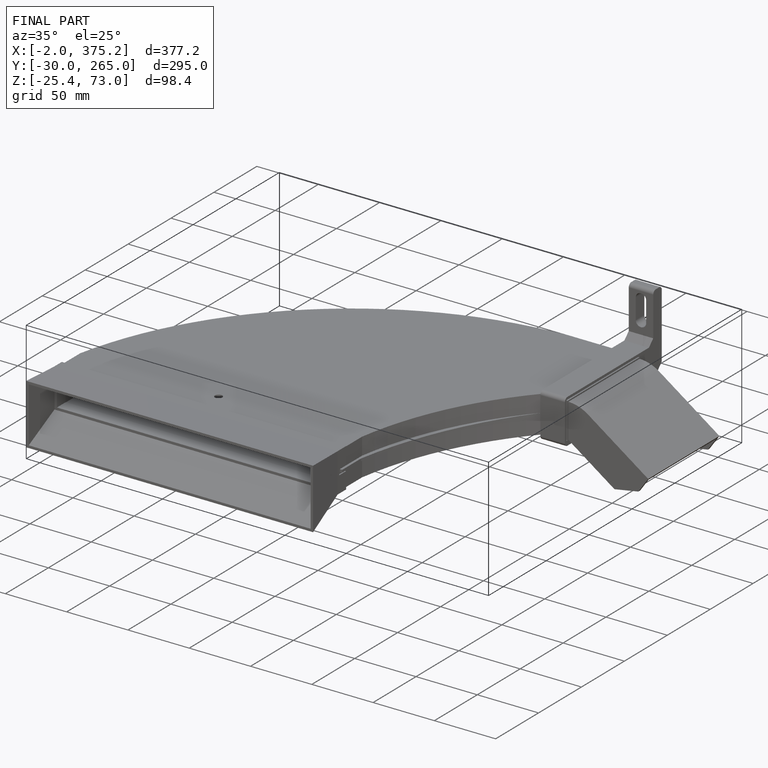
[diagram: finished part — iso view with bounding-box wireframe]
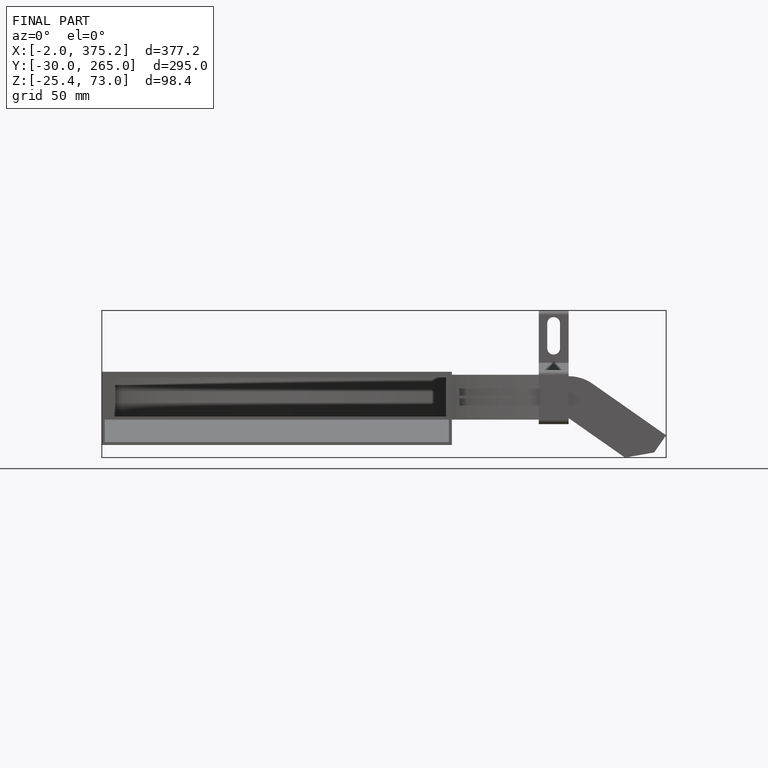
[diagram: finished part — front view with bounding-box wireframe]
